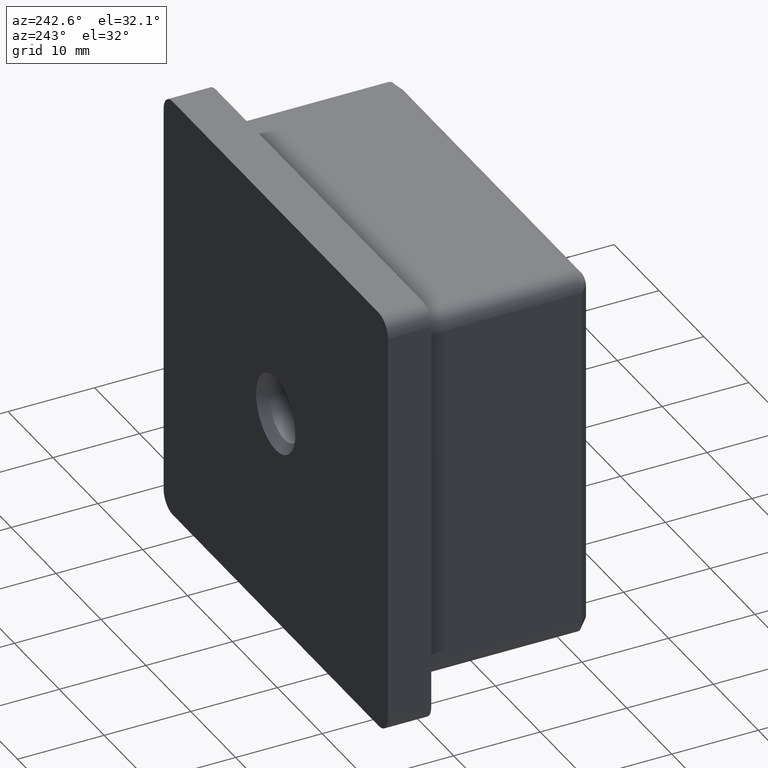
[diagram: clean part render]
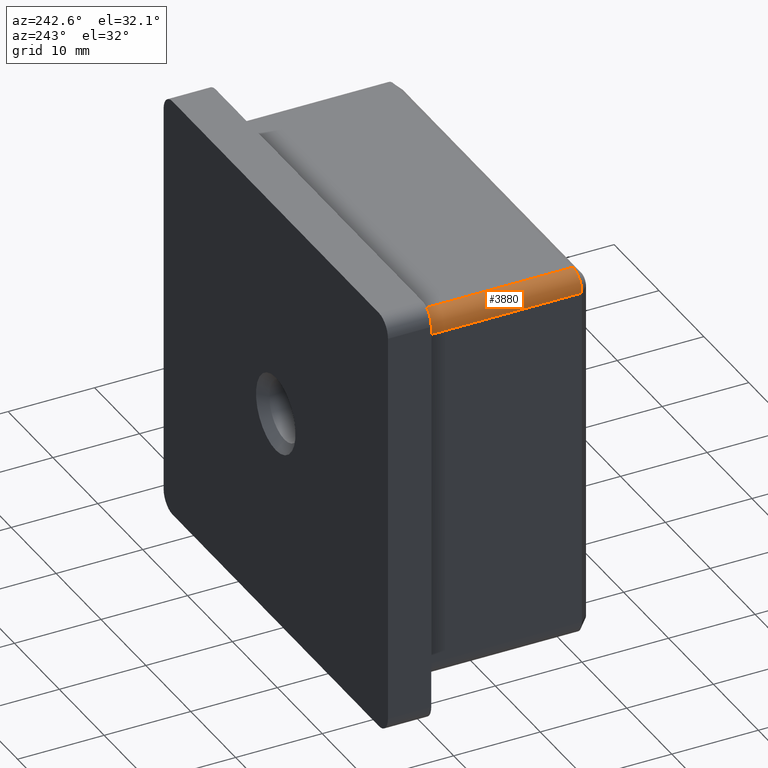
[diagram: same view with one face highlighted and labeled with its STEP entity id]
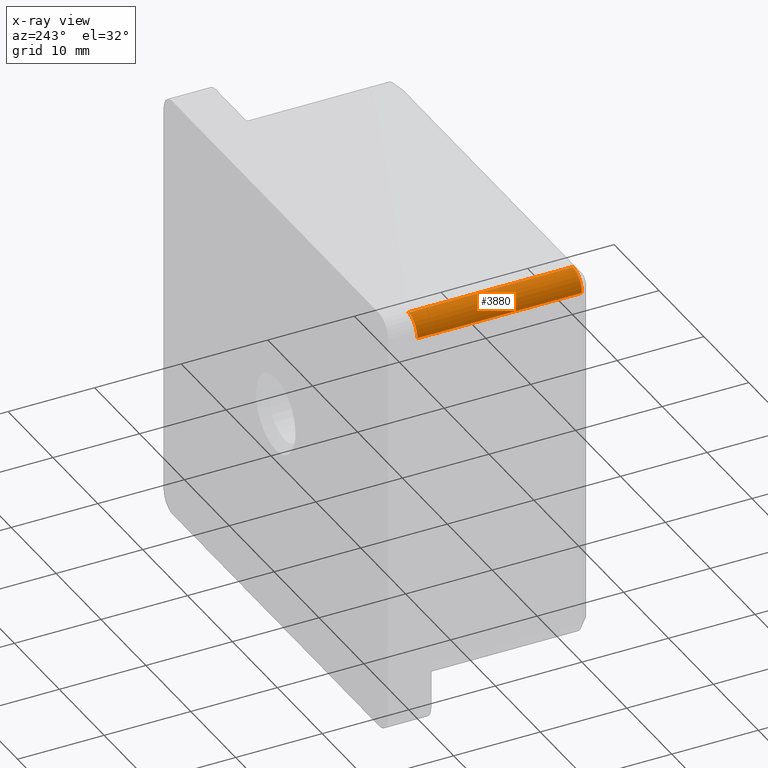
[diagram: x-ray of the same camera — body ghosted, the highlighted face saturated]
A machine part, auxiliary view. The second image highlights one B-rep face of the part: STEP entity #3880.
The next image is the same camera in x-ray: the body ghosted, the highlighted face saturated — about 0% of this face is hidden behind the body in this view.
In plain terms, the highlighted cylindrical surface (edge-blend (fillet) strip) has radius 2 mm, axis along (-0, 1, 0).
Its self-contained STEP definition (entity closure, byte-faithful):
#820 = CARTESIAN_POINT ( 'NONE',  ( -19.89999999999998800, -18.99999999999999300, 19.89999999999998800 ) ) ;
#1629 = DIRECTION ( 'NONE',  ( 0.0000000000000000000, 1.000000000000000000, 0.0000000000000000000 ) ) ;
#1647 = CIRCLE ( 'NONE', #16891, 2.000000000000001800 ) ;
#1826 = VERTEX_POINT ( 'NONE', #18008 ) ;
#2447 = EDGE_LOOP ( 'NONE', ( #10932, #9195, #7867, #18016 ) ) ;
#2534 = VECTOR ( 'NONE', #4946, 1000.000000000000000 ) ;
#2761 = AXIS2_PLACEMENT_3D ( 'NONE', #8445, #5512, #8255 ) ;
#3653 = CARTESIAN_POINT ( 'NONE',  ( -21.89999999999998800, -20.00000000000000000, 19.89999999999998800 ) ) ;
#3880 = ADVANCED_FACE ( 'NONE', ( #8899 ), #15139, .T. ) ;
#4946 = DIRECTION ( 'NONE',  ( -0.0000000000000000000, 1.000000000000000000, 0.0000000000000000000 ) ) ;
#5512 = DIRECTION ( 'NONE',  ( -0.0000000000000000000, 1.000000000000000000, 0.0000000000000000000 ) ) ;
#5520 = EDGE_CURVE ( 'NONE', #16729, #1826, #1647, .T. ) ;
#6396 = CARTESIAN_POINT ( 'NONE',  ( -19.89999999999998800, -18.99999999999999300, 21.89999999999998800 ) ) ;
#6444 = CIRCLE ( 'NONE', #12244, 2.000000000000001800 ) ;
#7867 = ORIENTED_EDGE ( 'NONE', *, *, #16210, .F. ) ;
#8149 = CARTESIAN_POINT ( 'NONE',  ( -21.89999999999998800, -18.99999999999999300, 19.89999999999998800 ) ) ;
#8255 = DIRECTION ( 'NONE',  ( 0.0000000000000000000, 0.0000000000000000000, 1.000000000000000000 ) ) ;
#8347 = CARTESIAN_POINT ( 'NONE',  ( -19.89999999999998800, -20.00000000000000000, 21.89999999999998800 ) ) ;
#8369 = VERTEX_POINT ( 'NONE', #6396 ) ;
#8370 = DIRECTION ( 'NONE',  ( 0.0000000000000000000, 0.0000000000000000000, -1.000000000000000000 ) ) ;
#8445 = CARTESIAN_POINT ( 'NONE',  ( -19.89999999999998800, -20.00000000000000000, 19.89999999999998800 ) ) ;
#8899 = FACE_OUTER_BOUND ( 'NONE', #2447, .T. ) ;
#9195 = ORIENTED_EDGE ( 'NONE', *, *, #17510, .T. ) ;
#9245 = VERTEX_POINT ( 'NONE', #8149 ) ;
#10932 = ORIENTED_EDGE ( 'NONE', *, *, #18886, .F. ) ;
#12244 = AXIS2_PLACEMENT_3D ( 'NONE', #820, #12743, #8370 ) ;
#12743 = DIRECTION ( 'NONE',  ( 0.0000000000000000000, 1.000000000000000000, 0.0000000000000000000 ) ) ;
#13348 = CARTESIAN_POINT ( 'NONE',  ( -21.89999999999998800, 0.0000000000000000000, 19.89999999999998800 ) ) ;
#14337 = LINE ( 'NONE', #3653, #2534 ) ;
#14915 = DIRECTION ( 'NONE',  ( 0.0000000000000000000, 0.0000000000000000000, 1.000000000000000000 ) ) ;
#15139 = CYLINDRICAL_SURFACE ( 'NONE', #2761, 2.000000000000001800 ) ;
#15273 = LINE ( 'NONE', #8347, #15974 ) ;
#15974 = VECTOR ( 'NONE', #17224, 1000.000000000000000 ) ;
#16210 = EDGE_CURVE ( 'NONE', #1826, #8369, #15273, .T. ) ;
#16729 = VERTEX_POINT ( 'NONE', #13348 ) ;
#16891 = AXIS2_PLACEMENT_3D ( 'NONE', #17923, #1629, #14915 ) ;
#17224 = DIRECTION ( 'NONE',  ( -0.0000000000000000000, -1.000000000000000000, -0.0000000000000000000 ) ) ;
#17510 = EDGE_CURVE ( 'NONE', #9245, #8369, #6444, .T. ) ;
#17923 = CARTESIAN_POINT ( 'NONE',  ( -19.89999999999998800, 0.0000000000000000000, 19.89999999999998800 ) ) ;
#18008 = CARTESIAN_POINT ( 'NONE',  ( -19.89999999999998800, 0.0000000000000000000, 21.89999999999998800 ) ) ;
#18016 = ORIENTED_EDGE ( 'NONE', *, *, #5520, .F. ) ;
#18886 = EDGE_CURVE ( 'NONE', #9245, #16729, #14337, .T. ) ;